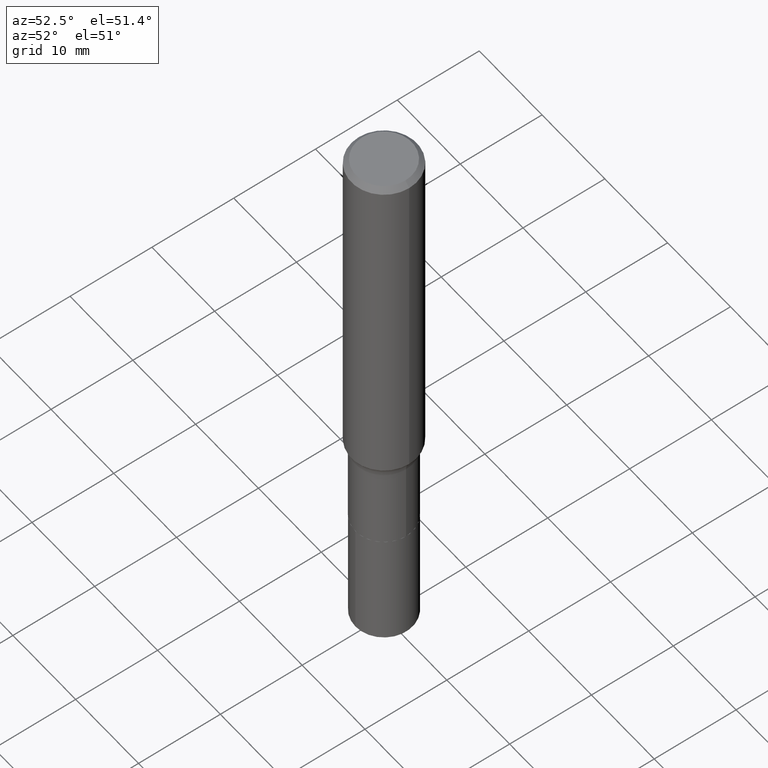
[diagram: clean part render]
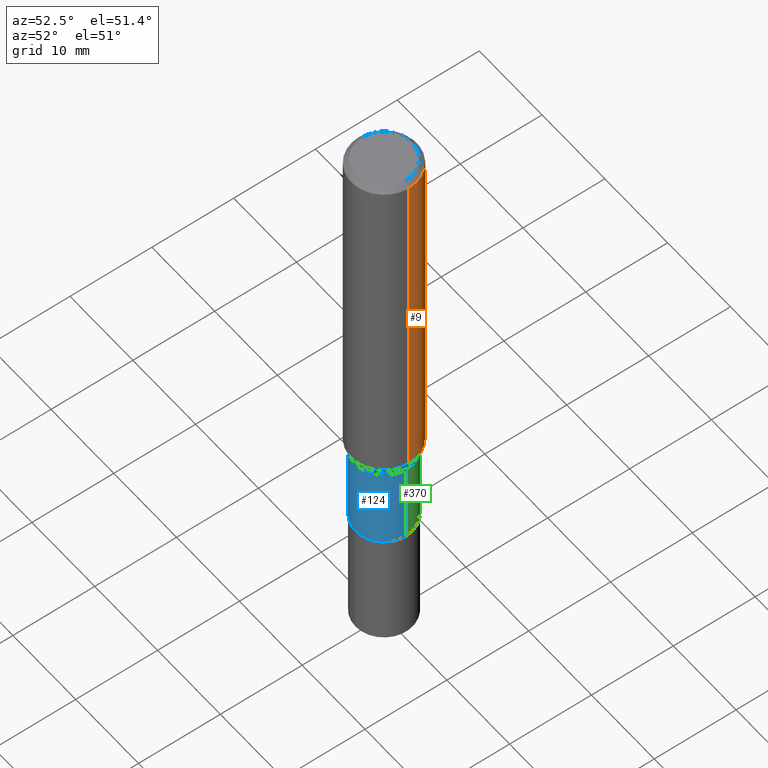
[diagram: same view with three faces highlighted in distinct colors, each labeled with its STEP entity id]
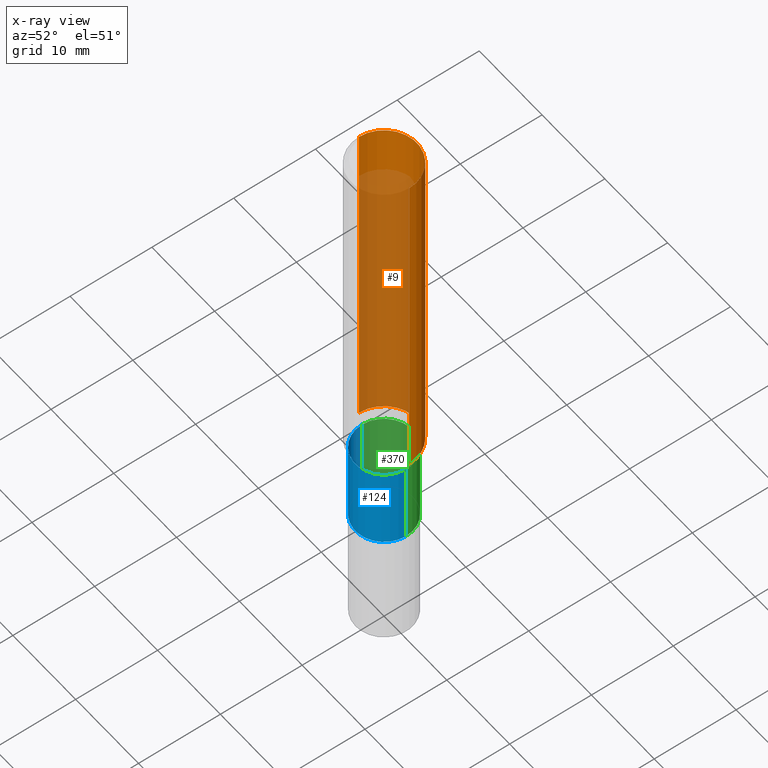
[diagram: x-ray of the same camera — body ghosted, the three highlighted faces saturated]
A machine part, auxiliary view with three faces highlighted in distinct colors.
The next image is the same camera in x-ray (body ghosted, the three faces saturated) — at least one of them is partly hidden behind the body in this view.
Their STEP definitions:

[orange] entity #9 — the highlighted cylindrical surface (partial cylindrical patch) has radius 4.0005 mm, axis along (-0, 0, 1).
#4 = CARTESIAN_POINT ( 'NONE',  ( 0.1575000000000000844, -1.099816621735587677E-15, 7.679978421878603638E-30 ) ) ;
#9 = ADVANCED_FACE ( 'NONE', ( #414 ), #193, .T. ) ;
#18 = CIRCLE ( 'NONE', #287, 0.1575000000000001954 ) ;
#23 = DIRECTION ( 'NONE',  ( -2.445468806185136597E-29, 3.491481338843145583E-15, 1.000000000000000000 ) ) ;
#37 = DIRECTION ( 'NONE',  ( -2.445468806185136597E-29, 3.491481338843145583E-15, 1.000000000000000000 ) ) ;
#83 = DIRECTION ( 'NONE',  ( -2.445468806185136597E-29, 3.491481338843145583E-15, 1.000000000000000000 ) ) ;
#91 = EDGE_CURVE ( 'NONE', #184, #341, #387, .T. ) ;
#143 = DIRECTION ( 'NONE',  ( 1.000000000000000000, -6.982962677686265922E-15, 0.000000000000000000 ) ) ;
#162 = ORIENTED_EDGE ( 'NONE', *, *, #252, .T. ) ;
#172 = ORIENTED_EDGE ( 'NONE', *, *, #354, .F. ) ;
#184 = VERTEX_POINT ( 'NONE', #361 ) ;
#193 = CYLINDRICAL_SURFACE ( 'NONE', #296, 0.1575000000000000844 ) ;
#202 = ORIENTED_EDGE ( 'NONE', *, *, #91, .F. ) ;
#211 = DIRECTION ( 'NONE',  ( -2.445468806185136877E-29, 3.491481338843145188E-15, 1.000000000000000000 ) ) ;
#216 = LINE ( 'NONE', #363, #408 ) ;
#227 = VERTEX_POINT ( 'NONE', #400 ) ;
#240 = CARTESIAN_POINT ( 'NONE',  ( 5.777420054612418477E-31, -8.248624663016979071E-17, -0.02362500000000013547 ) ) ;
#252 = EDGE_CURVE ( 'NONE', #412, #341, #216, .T. ) ;
#260 = EDGE_CURVE ( 'NONE', #227, #412, #18, .T. ) ;
#266 = AXIS2_PLACEMENT_3D ( 'NONE', #240, #23, #305 ) ;
#282 = DIRECTION ( 'NONE',  ( -2.445468806185136877E-29, 3.491481338843145188E-15, 1.000000000000000000 ) ) ;
#287 = AXIS2_PLACEMENT_3D ( 'NONE', #360, #37, #143 ) ;
#296 = AXIS2_PLACEMENT_3D ( 'NONE', #407, #83, #343 ) ;
#305 = DIRECTION ( 'NONE',  ( 1.000000000000000000, -6.982962677686265922E-15, 0.000000000000000000 ) ) ;
#323 = CARTESIAN_POINT ( 'NONE',  ( -0.1575000000000000011, -1.909147906364017274E-15, -0.02362500000000013547 ) ) ;
#341 = VERTEX_POINT ( 'NONE', #323 ) ;
#343 = DIRECTION ( 'NONE',  ( 1.000000000000000000, -6.982962677686267499E-15, 4.876176775795936353E-29 ) ) ;
#354 = EDGE_CURVE ( 'NONE', #227, #184, #399, .T. ) ;
#360 = CARTESIAN_POINT ( 'NONE',  ( 4.184263395270983918E-29, -5.974019183742183514E-15, -1.711027098234926713 ) ) ;
#361 = CARTESIAN_POINT ( 'NONE',  ( 0.1575000000000000011, -1.182302868365756679E-15, -0.02362500000000013547 ) ) ;
#363 = CARTESIAN_POINT ( 'NONE',  ( -0.1575000000000000844, 1.119104808822158392E-15, -7.747322767151481189E-30 ) ) ;
#383 = ORIENTED_EDGE ( 'NONE', *, *, #260, .T. ) ;
#387 = CIRCLE ( 'NONE', #266, 0.1575000000000000011 ) ;
#399 = LINE ( 'NONE', #4, #453 ) ;
#400 = CARTESIAN_POINT ( 'NONE',  ( 0.1575000000000002787, -7.073835805477772572E-15, -1.711027098234926713 ) ) ;
#407 = CARTESIAN_POINT ( 'NONE',  ( 0.000000000000000000, 0.000000000000000000, 0.000000000000000000 ) ) ;
#408 = VECTOR ( 'NONE', #211, 39.37007874015748143 ) ;
#412 = VERTEX_POINT ( 'NONE', #444 ) ;
#414 = FACE_OUTER_BOUND ( 'NONE', #428, .T. ) ;
#428 = EDGE_LOOP ( 'NONE', ( #383, #162, #202, #172 ) ) ;
#444 = CARTESIAN_POINT ( 'NONE',  ( -0.1575000000000002787, -4.854914374920024333E-15, -1.711027098234926713 ) ) ;
#453 = VECTOR ( 'NONE', #282, 39.37007874015748143 ) ;

[blue] entity #124 — the highlighted cylindrical surface (edge-blend (fillet) strip) has radius 3.5001 mm, axis along (-0, 0, 1).
#1 = DIRECTION ( 'NONE',  ( 1.000000000000000000, -6.982962677686265922E-15, 0.000000000000000000 ) ) ;
#10 = VERTEX_POINT ( 'NONE', #20 ) ;
#12 = CARTESIAN_POINT ( 'NONE',  ( 4.312828786588107303E-29, -6.157576489183771935E-15, -1.763600000000000056 ) ) ;
#20 = CARTESIAN_POINT ( 'NONE',  ( -0.1377999999999999781, -5.892107384965892698E-15, -1.763600000000000056 ) ) ;
#21 = EDGE_CURVE ( 'NONE', #425, #10, #161, .T. ) ;
#25 = CARTESIAN_POINT ( 'NONE',  ( 5.312536434556590203E-29, -7.584894060502850050E-15, -2.172400000000000109 ) ) ;
#34 = CARTESIAN_POINT ( 'NONE',  ( 0.1378000000000000058, -8.547146317488017527E-15, -2.172400000000000109 ) ) ;
#48 = AXIS2_PLACEMENT_3D ( 'NONE', #12, #153, #291 ) ;
#66 = DIRECTION ( 'NONE',  ( -2.445468806185136877E-29, 3.491481338843145188E-15, 1.000000000000000000 ) ) ;
#76 = CARTESIAN_POINT ( 'NONE',  ( 0.1377999999999999781, -7.119828746168939412E-15, -1.763600000000000056 ) ) ;
#81 = ORIENTED_EDGE ( 'NONE', *, *, #430, .T. ) ;
#82 = EDGE_LOOP ( 'NONE', ( #297, #81, #254, #450 ) ) ;
#124 = ADVANCED_FACE ( 'NONE', ( #381 ), #170, .T. ) ;
#153 = DIRECTION ( 'NONE',  ( -2.445468806185136597E-29, 3.491481338843145583E-15, 1.000000000000000000 ) ) ;
#161 = LINE ( 'NONE', #302, #322 ) ;
#165 = DIRECTION ( 'NONE',  ( -2.445468806185136597E-29, 3.491481338843145583E-15, 1.000000000000000000 ) ) ;
#167 = CARTESIAN_POINT ( 'NONE',  ( 0.000000000000000000, 0.000000000000000000, 0.000000000000000000 ) ) ;
#170 = CYLINDRICAL_SURFACE ( 'NONE', #451, 0.1378000000000000058 ) ;
#203 = CARTESIAN_POINT ( 'NONE',  ( -0.1378000000000000336, -5.892107384965891909E-15, -2.172400000000000109 ) ) ;
#226 = EDGE_CURVE ( 'NONE', #332, #312, #319, .T. ) ;
#248 = CARTESIAN_POINT ( 'NONE',  ( 0.1378000000000000058, -9.622522569851674770E-16, 6.719371597046798536E-30 ) ) ;
#254 = ORIENTED_EDGE ( 'NONE', *, *, #226, .T. ) ;
#291 = DIRECTION ( 'NONE',  ( 1.000000000000000000, -6.982962677686267499E-15, 0.000000000000000000 ) ) ;
#297 = ORIENTED_EDGE ( 'NONE', *, *, #21, .F. ) ;
#302 = CARTESIAN_POINT ( 'NONE',  ( -0.1378000000000000058, 9.791278898774180975E-16, -6.778292554371260034E-30 ) ) ;
#310 = DIRECTION ( 'NONE',  ( -2.445468806185136597E-29, 3.491481338843145583E-15, 1.000000000000000000 ) ) ;
#312 = VERTEX_POINT ( 'NONE', #76 ) ;
#313 = VECTOR ( 'NONE', #66, 39.37007874015748143 ) ;
#319 = LINE ( 'NONE', #248, #313 ) ;
#322 = VECTOR ( 'NONE', #403, 39.37007874015748143 ) ;
#332 = VERTEX_POINT ( 'NONE', #34 ) ;
#336 = CIRCLE ( 'NONE', #394, 0.1378000000000000058 ) ;
#381 = FACE_OUTER_BOUND ( 'NONE', #82, .T. ) ;
#394 = AXIS2_PLACEMENT_3D ( 'NONE', #25, #310, #1 ) ;
#403 = DIRECTION ( 'NONE',  ( -2.445468806185136877E-29, 3.491481338843145188E-15, 1.000000000000000000 ) ) ;
#404 = CIRCLE ( 'NONE', #48, 0.1377999999999999781 ) ;
#411 = EDGE_CURVE ( 'NONE', #10, #312, #404, .T. ) ;
#425 = VERTEX_POINT ( 'NONE', #203 ) ;
#430 = EDGE_CURVE ( 'NONE', #425, #332, #336, .T. ) ;
#450 = ORIENTED_EDGE ( 'NONE', *, *, #411, .F. ) ;
#451 = AXIS2_PLACEMENT_3D ( 'NONE', #167, #165, #458 ) ;
#458 = DIRECTION ( 'NONE',  ( 1.000000000000000000, -6.982962677686265922E-15, 4.876176775795934672E-29 ) ) ;

[green] entity #370 — the highlighted cylindrical surface (edge-blend (fillet) strip) has radius 3.5001 mm, axis along (-0, 0, 1).
#10 = VERTEX_POINT ( 'NONE', #20 ) ;
#20 = CARTESIAN_POINT ( 'NONE',  ( -0.1377999999999999781, -5.892107384965892698E-15, -1.763600000000000056 ) ) ;
#21 = EDGE_CURVE ( 'NONE', #425, #10, #161, .T. ) ;
#34 = CARTESIAN_POINT ( 'NONE',  ( 0.1378000000000000058, -8.547146317488017527E-15, -2.172400000000000109 ) ) ;
#66 = DIRECTION ( 'NONE',  ( -2.445468806185136877E-29, 3.491481338843145188E-15, 1.000000000000000000 ) ) ;
#76 = CARTESIAN_POINT ( 'NONE',  ( 0.1377999999999999781, -7.119828746168939412E-15, -1.763600000000000056 ) ) ;
#80 = DIRECTION ( 'NONE',  ( -2.445468806185136597E-29, 3.491481338843145583E-15, 1.000000000000000000 ) ) ;
#87 = ORIENTED_EDGE ( 'NONE', *, *, #226, .F. ) ;
#88 = CARTESIAN_POINT ( 'NONE',  ( 4.312828786588107303E-29, -6.157576489183771935E-15, -1.763600000000000056 ) ) ;
#97 = EDGE_LOOP ( 'NONE', ( #455, #236, #467, #87 ) ) ;
#128 = CIRCLE ( 'NONE', #283, 0.1378000000000000058 ) ;
#161 = LINE ( 'NONE', #302, #322 ) ;
#168 = DIRECTION ( 'NONE',  ( -2.445468806185136597E-29, 3.491481338843145583E-15, 1.000000000000000000 ) ) ;
#190 = FACE_OUTER_BOUND ( 'NONE', #97, .T. ) ;
#203 = CARTESIAN_POINT ( 'NONE',  ( -0.1378000000000000336, -5.892107384965891909E-15, -2.172400000000000109 ) ) ;
#222 = CYLINDRICAL_SURFACE ( 'NONE', #263, 0.1378000000000000058 ) ;
#226 = EDGE_CURVE ( 'NONE', #332, #312, #319, .T. ) ;
#236 = ORIENTED_EDGE ( 'NONE', *, *, #21, .T. ) ;
#248 = CARTESIAN_POINT ( 'NONE',  ( 0.1378000000000000058, -9.622522569851674770E-16, 6.719371597046798536E-30 ) ) ;
#263 = AXIS2_PLACEMENT_3D ( 'NONE', #338, #368, #329 ) ;
#283 = AXIS2_PLACEMENT_3D ( 'NONE', #289, #80, #371 ) ;
#289 = CARTESIAN_POINT ( 'NONE',  ( 5.312536434556590203E-29, -7.584894060502850050E-15, -2.172400000000000109 ) ) ;
#302 = CARTESIAN_POINT ( 'NONE',  ( -0.1378000000000000058, 9.791278898774180975E-16, -6.778292554371260034E-30 ) ) ;
#312 = VERTEX_POINT ( 'NONE', #76 ) ;
#313 = VECTOR ( 'NONE', #66, 39.37007874015748143 ) ;
#319 = LINE ( 'NONE', #248, #313 ) ;
#322 = VECTOR ( 'NONE', #403, 39.37007874015748143 ) ;
#329 = DIRECTION ( 'NONE',  ( 1.000000000000000000, -6.982962677686265922E-15, 4.876176775795934672E-29 ) ) ;
#332 = VERTEX_POINT ( 'NONE', #34 ) ;
#338 = CARTESIAN_POINT ( 'NONE',  ( 0.000000000000000000, 0.000000000000000000, 0.000000000000000000 ) ) ;
#347 = CIRCLE ( 'NONE', #406, 0.1377999999999999781 ) ;
#368 = DIRECTION ( 'NONE',  ( -2.445468806185136597E-29, 3.491481338843145583E-15, 1.000000000000000000 ) ) ;
#370 = ADVANCED_FACE ( 'NONE', ( #190 ), #222, .T. ) ;
#371 = DIRECTION ( 'NONE',  ( 1.000000000000000000, -6.982962677686265922E-15, 0.000000000000000000 ) ) ;
#398 = EDGE_CURVE ( 'NONE', #332, #425, #128, .T. ) ;
#403 = DIRECTION ( 'NONE',  ( -2.445468806185136877E-29, 3.491481338843145188E-15, 1.000000000000000000 ) ) ;
#406 = AXIS2_PLACEMENT_3D ( 'NONE', #88, #168, #426 ) ;
#413 = EDGE_CURVE ( 'NONE', #312, #10, #347, .T. ) ;
#425 = VERTEX_POINT ( 'NONE', #203 ) ;
#426 = DIRECTION ( 'NONE',  ( 1.000000000000000000, -6.982962677686267499E-15, 0.000000000000000000 ) ) ;
#455 = ORIENTED_EDGE ( 'NONE', *, *, #398, .T. ) ;
#467 = ORIENTED_EDGE ( 'NONE', *, *, #413, .F. ) ;